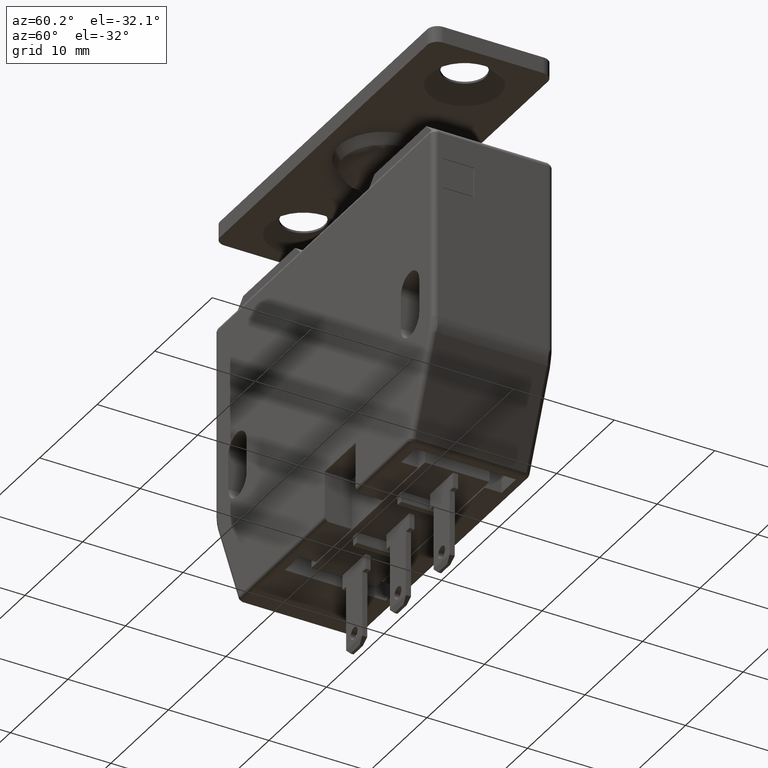
[diagram: clean part render]
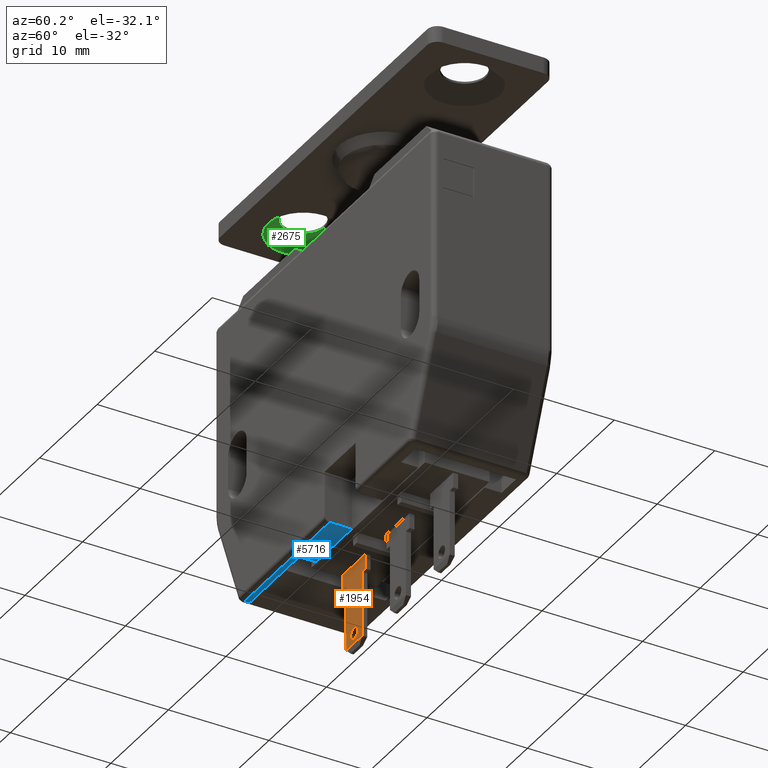
[diagram: same view with three faces highlighted in distinct colors, each labeled with its STEP entity id]
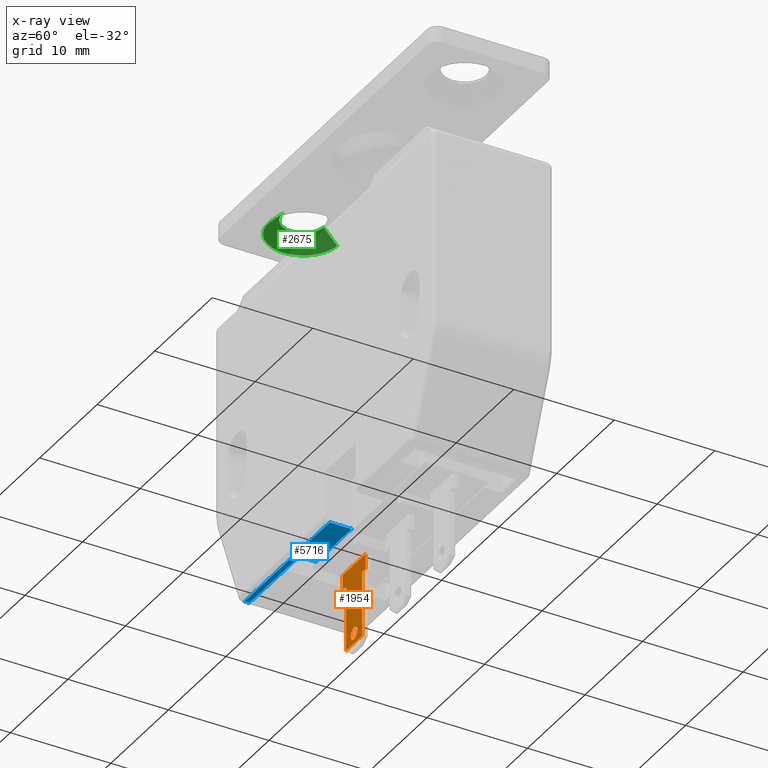
[diagram: x-ray of the same camera — body ghosted, the three highlighted faces saturated]
A machine part, auxiliary view with three faces highlighted in distinct colors.
The next image is the same camera in x-ray (body ghosted, the three faces saturated) — at least one of them is partly hidden behind the body in this view.
Their STEP definitions:

[orange] entity #1954 — the highlighted face is a freeform B-spline surface patch.
#421=CARTESIAN_POINT('',(-5.348150400331335,-0.249999999992534,-38.952924542244503));
#422=VERTEX_POINT('',#421);
#428=CARTESIAN_POINT('',(-4.750000000116760,-0.249999999992534,-39.600000000002701));
#429=VERTEX_POINT('',#428);
#430=CARTESIAN_POINT('',(-5.348150400331336,-0.249999999992534,-38.952924542244510));
#431=CARTESIAN_POINT('',(-5.350000000116761,-0.249999999992534,-38.976425935636605));
#432=CARTESIAN_POINT('',(-5.350000000116760,-0.249999999992534,-39.000000000002700));
#433=CARTESIAN_POINT('',(-5.350000000116759,-0.249999999992534,-39.600000000002701));
#434=CARTESIAN_POINT('',(-4.750000000116760,-0.249999999992534,-39.600000000002701));
#442=(BOUNDED_CURVE()B_SPLINE_CURVE(2,(#430,#431,#432,#433,#434),.UNSPECIFIED.,.F.,.U.)B_SPLINE_CURVE_WITH_KNOTS((3,2,3),(0.736331300540630,0.750000000000000,1.0),.UNSPECIFIED.)CURVE()GEOMETRIC_REPRESENTATION_ITEM()RATIONAL_B_SPLINE_CURVE((0.969723355979533,0.983986122473406,1.0,0.707106781186547,1.0))REPRESENTATION_ITEM(''));
#443=EDGE_CURVE('',#422,#429,#442,.T.);
#445=CARTESIAN_POINT('',(-4.151849599902185,-0.249999999992534,-39.047075457760897));
#446=VERTEX_POINT('',#445);
#447=CARTESIAN_POINT('',(-4.750000000116760,-0.249999999992534,-39.600000000002701));
#448=CARTESIAN_POINT('',(-4.195365705420861,-0.249999999992534,-39.600000000002716));
#449=CARTESIAN_POINT('',(-4.151849599902186,-0.249999999992534,-39.047075457760897));
#457=(BOUNDED_CURVE()B_SPLINE_CURVE(2,(#447,#448,#449),.UNSPECIFIED.,.F.,.U.)B_SPLINE_CURVE_WITH_KNOTS((3,3),(0.0,0.236331300540630),.UNSPECIFIED.)CURVE()GEOMETRIC_REPRESENTATION_ITEM()RATIONAL_B_SPLINE_CURVE((1.0,0.723120658713141,0.969723355979534))REPRESENTATION_ITEM(''));
#458=EDGE_CURVE('',#429,#446,#457,.T.);
#504=CARTESIAN_POINT('',(-4.750000000116760,-0.249999999992534,-38.400000000002699));
#505=VERTEX_POINT('',#504);
#506=CARTESIAN_POINT('',(-4.151849599902186,-0.249999999992534,-39.047075457760897));
#507=CARTESIAN_POINT('',(-4.150000000116760,-0.249999999992534,-39.023574064368802));
#508=CARTESIAN_POINT('',(-4.150000000116760,-0.249999999992534,-39.000000000002700));
#509=CARTESIAN_POINT('',(-4.150000000116760,-0.249999999992534,-38.400000000002699));
#510=CARTESIAN_POINT('',(-4.750000000116760,-0.249999999992534,-38.400000000002699));
#518=(BOUNDED_CURVE()B_SPLINE_CURVE(2,(#506,#507,#508,#509,#510),.UNSPECIFIED.,.F.,.U.)B_SPLINE_CURVE_WITH_KNOTS((3,2,3),(0.236331300540630,0.250000000000000,0.500000000000000),.UNSPECIFIED.)CURVE()GEOMETRIC_REPRESENTATION_ITEM()RATIONAL_B_SPLINE_CURVE((0.969723355979534,0.983986122473406,1.0,0.707106781186547,1.0))REPRESENTATION_ITEM(''));
#519=EDGE_CURVE('',#446,#505,#518,.T.);
#521=CARTESIAN_POINT('',(-4.750000000116760,-0.249999999992534,-38.400000000002699));
#522=CARTESIAN_POINT('',(-5.304634294812660,-0.249999999992534,-38.400000000002692));
#523=CARTESIAN_POINT('',(-5.348150400331335,-0.249999999992534,-38.952924542244503));
#531=(BOUNDED_CURVE()B_SPLINE_CURVE(2,(#521,#522,#523),.UNSPECIFIED.,.F.,.U.)B_SPLINE_CURVE_WITH_KNOTS((3,3),(0.500000000000000,0.736331300540630),.UNSPECIFIED.)CURVE()GEOMETRIC_REPRESENTATION_ITEM()RATIONAL_B_SPLINE_CURVE((1.0,0.723120658713141,0.969723355979534))REPRESENTATION_ITEM(''));
#532=EDGE_CURVE('',#505,#422,#531,.T.);
#742=CARTESIAN_POINT('',(-3.350000000116665,-0.249999999992534,-40.000000000002700));
#743=VERTEX_POINT('',#742);
#804=CARTESIAN_POINT('',(-6.150000000116780,-0.249999999992497,-40.000000000002700));
#805=VERTEX_POINT('',#804);
#1083=CARTESIAN_POINT('',(-6.150000000116780,-0.249999999992497,-40.000000000002700));
#1084=CARTESIAN_POINT('',(-3.350000000116665,-0.249999999992534,-40.000000000002700));
#1085=QUASI_UNIFORM_CURVE('',1,(#1083,#1084),.UNSPECIFIED.,.F.,.U.);
#1086=EDGE_CURVE('',#805,#743,#1085,.T.);
#1521=CARTESIAN_POINT('',(-2.750000000116755,-0.249999999992534,-33.500000000002750));
#1522=VERTEX_POINT('',#1521);
#1528=CARTESIAN_POINT('',(-3.350000000116725,-0.249999999992534,-33.500000000002750));
#1529=VERTEX_POINT('',#1528);
#1530=CARTESIAN_POINT('',(-3.350000000116725,-0.249999999992534,-33.500000000002750));
#1531=CARTESIAN_POINT('',(-2.750000000116755,-0.249999999992534,-33.500000000002750));
#1532=QUASI_UNIFORM_CURVE('',1,(#1530,#1531),.UNSPECIFIED.,.F.,.U.);
#1533=EDGE_CURVE('',#1529,#1522,#1532,.T.);
#1554=CARTESIAN_POINT('',(-3.350000000116665,-0.249999999992534,-40.000000000002700));
#1555=CARTESIAN_POINT('',(-3.350000000116725,-0.249999999992534,-33.500000000002750));
#1556=QUASI_UNIFORM_CURVE('',1,(#1554,#1555),.UNSPECIFIED.,.F.,.U.);
#1557=EDGE_CURVE('',#743,#1529,#1556,.T.);
#1576=CARTESIAN_POINT('',(-6.150000000116730,-0.249999999992534,-33.500000000002750));
#1577=VERTEX_POINT('',#1576);
#1578=CARTESIAN_POINT('',(-6.150000000116730,-0.249999999992534,-33.500000000002750));
#1579=CARTESIAN_POINT('',(-6.150000000116780,-0.249999999992497,-40.000000000002700));
#1580=QUASI_UNIFORM_CURVE('',1,(#1578,#1579),.UNSPECIFIED.,.F.,.U.);
#1581=EDGE_CURVE('',#1577,#805,#1580,.T.);
#1604=CARTESIAN_POINT('',(-6.750000000116760,-0.249999999992534,-33.500000000002750));
#1605=VERTEX_POINT('',#1604);
#1606=CARTESIAN_POINT('',(-6.750000000116760,-0.249999999992534,-33.500000000002750));
#1607=CARTESIAN_POINT('',(-6.150000000116730,-0.249999999992534,-33.500000000002750));
#1608=QUASI_UNIFORM_CURVE('',1,(#1606,#1607),.UNSPECIFIED.,.F.,.U.);
#1609=EDGE_CURVE('',#1605,#1577,#1608,.T.);
#1632=CARTESIAN_POINT('',(-6.750000000116760,-0.249999999992534,-32.000000000002807));
#1633=VERTEX_POINT('',#1632);
#1634=CARTESIAN_POINT('',(-6.750000000116760,-0.249999999992534,-32.000000000002807));
#1635=CARTESIAN_POINT('',(-6.750000000116760,-0.249999999992534,-33.500000000002750));
#1636=QUASI_UNIFORM_CURVE('',1,(#1634,#1635),.UNSPECIFIED.,.F.,.U.);
#1637=EDGE_CURVE('',#1633,#1605,#1636,.T.);
#1659=CARTESIAN_POINT('',(-2.750000000116755,-0.249999999992534,-32.000000000002807));
#1660=VERTEX_POINT('',#1659);
#1666=CARTESIAN_POINT('',(-2.750000000116755,-0.249999999992534,-33.500000000002750));
#1667=CARTESIAN_POINT('',(-2.750000000116755,-0.249999999992534,-32.000000000002807));
#1668=QUASI_UNIFORM_CURVE('',1,(#1666,#1667),.UNSPECIFIED.,.F.,.U.);
#1669=EDGE_CURVE('',#1522,#1660,#1668,.T.);
#1929=CARTESIAN_POINT('',(-6.949799992363984,-0.249999999992483,-40.399599984497137));
#1930=CARTESIAN_POINT('',(-2.550199900581170,-0.249999999992483,-40.399599984497137));
#1931=CARTESIAN_POINT('',(-6.949799992363984,-0.249999999992483,-31.600399800931640));
#1932=CARTESIAN_POINT('',(-2.550199900581170,-0.249999999992483,-31.600399800931640));
#1933=B_SPLINE_SURFACE_WITH_KNOTS('',1,1,((#1929,#1931),(#1930,#1932)),.UNSPECIFIED.,.F.,.F.,.U.,(2,2),(2,2),(0.0,4.399600091782814),(0.0,8.799200183565500),.UNSPECIFIED.);
#1934=ORIENTED_EDGE('',*,*,#1581,.T.);
#1935=ORIENTED_EDGE('',*,*,#1086,.T.);
#1936=ORIENTED_EDGE('',*,*,#1557,.T.);
#1937=ORIENTED_EDGE('',*,*,#1533,.T.);
#1938=ORIENTED_EDGE('',*,*,#1669,.T.);
#1939=CARTESIAN_POINT('',(-2.750000000116755,-0.249999999992534,-32.000000000002807));
#1940=CARTESIAN_POINT('',(-6.750000000116760,-0.249999999992534,-32.000000000002807));
#1941=QUASI_UNIFORM_CURVE('',1,(#1939,#1940),.UNSPECIFIED.,.F.,.U.);
#1942=EDGE_CURVE('',#1660,#1633,#1941,.T.);
#1943=ORIENTED_EDGE('',*,*,#1942,.T.);
#1944=ORIENTED_EDGE('',*,*,#1637,.T.);
#1945=ORIENTED_EDGE('',*,*,#1609,.T.);
#1946=EDGE_LOOP('',(#1934,#1935,#1936,#1937,#1938,#1943,#1944,#1945));
#1947=FACE_OUTER_BOUND('',#1946,.T.);
#1948=ORIENTED_EDGE('',*,*,#532,.F.);
#1949=ORIENTED_EDGE('',*,*,#519,.F.);
#1950=ORIENTED_EDGE('',*,*,#458,.F.);
#1951=ORIENTED_EDGE('',*,*,#443,.F.);
#1952=EDGE_LOOP('',(#1948,#1949,#1950,#1951));
#1953=FACE_BOUND('',#1952,.T.);
#1954=ADVANCED_FACE('',(#1947,#1953),#1933,.T.);

[blue] entity #5716 — the highlighted face is a freeform B-spline surface patch.
#4068=CARTESIAN_POINT('',(0.149999999999977,-5.500000000000000,-32.000000000002807));
#4069=VERTEX_POINT('',#4068);
#4084=CARTESIAN_POINT('',(-14.661483519286600,-5.500000000000000,-32.000000000002807));
#4085=VERTEX_POINT('',#4084);
#4099=CARTESIAN_POINT('',(0.149999999999977,-5.500000000000000,-32.000000000002807));
#4100=CARTESIAN_POINT('',(-14.661483519286600,-5.500000000000000,-32.000000000002807));
#4101=QUASI_UNIFORM_CURVE('',1,(#4099,#4100),.UNSPECIFIED.,.F.,.U.);
#4102=EDGE_CURVE('',#4069,#4085,#4101,.T.);
#4670=CARTESIAN_POINT('',(-6.0,-3.300000000062920,-32.000000000002807));
#4671=VERTEX_POINT('',#4670);
#4672=CARTESIAN_POINT('',(0.149999999999977,-3.300000000062920,-32.000000000002807));
#4673=VERTEX_POINT('',#4672);
#4674=CARTESIAN_POINT('',(-6.0,-3.300000000062920,-32.000000000002807));
#4675=CARTESIAN_POINT('',(0.149999999999977,-3.300000000062920,-32.000000000002807));
#4676=QUASI_UNIFORM_CURVE('',1,(#4674,#4675),.UNSPECIFIED.,.F.,.U.);
#4677=EDGE_CURVE('',#4671,#4673,#4676,.T.);
#4728=CARTESIAN_POINT('',(-6.0,-5.0,-32.000000000002807));
#4729=VERTEX_POINT('',#4728);
#4741=CARTESIAN_POINT('',(-6.0,-3.300000000062920,-32.000000000002807));
#4742=CARTESIAN_POINT('',(-6.0,-5.0,-32.000000000002807));
#4743=QUASI_UNIFORM_CURVE('',1,(#4741,#4742),.UNSPECIFIED.,.F.,.U.);
#4744=EDGE_CURVE('',#4671,#4729,#4743,.T.);
#4800=CARTESIAN_POINT('',(0.149999999999977,-3.300000000062920,-32.000000000002807));
#4801=CARTESIAN_POINT('',(0.149999999999977,-5.500000000000000,-32.000000000002807));
#4802=QUASI_UNIFORM_CURVE('',1,(#4800,#4801),.UNSPECIFIED.,.F.,.U.);
#4803=EDGE_CURVE('',#4673,#4069,#4802,.T.);
#5414=CARTESIAN_POINT('',(-14.661483519286600,-5.0,-32.000000000002807));
#5415=VERTEX_POINT('',#5414);
#5416=CARTESIAN_POINT('',(-14.661483519286600,-5.0,-32.000000000002807));
#5417=CARTESIAN_POINT('',(-14.661483519286600,-5.500000000000000,-32.000000000002807));
#5418=QUASI_UNIFORM_CURVE('',1,(#5416,#5417),.UNSPECIFIED.,.F.,.U.);
#5419=EDGE_CURVE('',#5415,#4085,#5418,.T.);
#5699=CARTESIAN_POINT('',(-15.401317092367441,-5.609889995732829,-32.000000000002807));
#5700=CARTESIAN_POINT('',(0.889833970355760,-5.609889995732829,-32.000000000002807));
#5701=CARTESIAN_POINT('',(-15.401317092367441,-3.190109945321492,-32.000000000002807));
#5702=CARTESIAN_POINT('',(0.889833970355760,-3.190109945321492,-32.000000000002807));
#5703=B_SPLINE_SURFACE_WITH_KNOTS('',1,1,((#5699,#5701),(#5700,#5702)),.UNSPECIFIED.,.F.,.F.,.U.,(2,2),(2,2),(0.0,16.291151062723198),(0.0,2.419780050411338),.UNSPECIFIED.);
#5704=ORIENTED_EDGE('',*,*,#4803,.T.);
#5705=ORIENTED_EDGE('',*,*,#4102,.T.);
#5706=ORIENTED_EDGE('',*,*,#5419,.F.);
#5707=CARTESIAN_POINT('',(-6.0,-5.0,-32.000000000002807));
#5708=CARTESIAN_POINT('',(-14.661483519286600,-5.0,-32.000000000002807));
#5709=QUASI_UNIFORM_CURVE('',1,(#5707,#5708),.UNSPECIFIED.,.F.,.U.);
#5710=EDGE_CURVE('',#4729,#5415,#5709,.T.);
#5711=ORIENTED_EDGE('',*,*,#5710,.F.);
#5712=ORIENTED_EDGE('',*,*,#4744,.F.);
#5713=ORIENTED_EDGE('',*,*,#4677,.T.);
#5714=EDGE_LOOP('',(#5704,#5705,#5706,#5711,#5712,#5713));
#5715=FACE_OUTER_BOUND('',#5714,.T.);
#5716=ADVANCED_FACE('',(#5715),#5703,.F.);

[green] entity #2675 — the highlighted face is a freeform B-spline surface patch.
#2512=CARTESIAN_POINT('',(-14.128201933102339,2.096083076673555,8.200000000002605));
#2513=VERTEX_POINT('',#2512);
#2514=CARTESIAN_POINT('',(-14.213669888524260,3.493471794476534,6.799999999989833));
#2515=VERTEX_POINT('',#2514);
#2516=CARTESIAN_POINT('',(-14.128201933102339,2.096083076673555,8.200000000002605));
#2517=CARTESIAN_POINT('',(-14.213669888524260,3.493471794476534,6.799999999989833));
#2518=QUASI_UNIFORM_CURVE('',1,(#2516,#2517),.UNSPECIFIED.,.F.,.U.);
#2519=EDGE_CURVE('',#2513,#2515,#2518,.T.);
#2538=CARTESIAN_POINT('',(-13.786330111582391,-3.493471794483349,6.799999999989833));
#2539=VERTEX_POINT('',#2538);
#2553=CARTESIAN_POINT('',(-13.871798067004301,-2.096083076680369,8.200000000002605));
#2554=VERTEX_POINT('',#2553);
#2555=CARTESIAN_POINT('',(-13.871798067004301,-2.096083076680369,8.200000000002605));
#2556=CARTESIAN_POINT('',(-13.786330111582391,-3.493471794483349,6.799999999989833));
#2557=QUASI_UNIFORM_CURVE('',1,(#2555,#2556),.UNSPECIFIED.,.F.,.U.);
#2558=EDGE_CURVE('',#2554,#2539,#2557,.T.);
#2593=CARTESIAN_POINT('',(-13.873934765914299,-2.061148358737118,8.235000000002597));
#2594=CARTESIAN_POINT('',(-15.935083124648015,-2.187213592876142,8.235000000002598));
#2595=CARTESIAN_POINT('',(-16.061148358787030,-0.126065234142432,8.235000000002597));
#2596=CARTESIAN_POINT('',(-16.187213592926053,1.935083124591280,8.235000000002598));
#2597=CARTESIAN_POINT('',(-14.126065234192350,2.061148358730304,8.235000000002597));
#2598=CARTESIAN_POINT('',(-13.784139995325731,-3.529279880369769,6.764125000002943));
#2599=CARTESIAN_POINT('',(-17.313419875692091,-3.745139885097365,6.764125000002943));
#2600=CARTESIAN_POINT('',(-17.529279880419679,-0.215860004731002,6.764125000002943));
#2601=CARTESIAN_POINT('',(-17.745139885147271,3.313419875635361,6.764125000002943));
#2602=CARTESIAN_POINT('',(-14.215860004780920,3.529279880362955,6.764125000002943));
#2610=(BOUNDED_SURFACE()B_SPLINE_SURFACE(2,1,((#2593,#2598),(#2594,#2599),(#2595,#2600),(#2596,#2601),(#2597,#2602)),.UNSPECIFIED.,.F.,.F.,.U.)B_SPLINE_SURFACE_WITH_KNOTS((3,2,3),(2,2),(0.0,5.858429519417967,11.716859038835929),(0.0,2.080131373558036),.UNSPECIFIED.)GEOMETRIC_REPRESENTATION_ITEM()RATIONAL_B_SPLINE_SURFACE(((1.0,1.0),(0.707106781186548,0.707106781186548),(1.0,1.0),(0.707106781186548,0.707106781186548),(1.0,1.0)))REPRESENTATION_ITEM('')SURFACE());
#2611=ORIENTED_EDGE('',*,*,#2519,.F.);
#2612=CARTESIAN_POINT('',(-16.100000000045959,-3.407176E-012,8.200000000002605));
#2613=VERTEX_POINT('',#2612);
#2614=CARTESIAN_POINT('',(-16.100000000045959,-3.407176E-012,8.200000000002605));
#2615=CARTESIAN_POINT('',(-16.100000000032818,1.975482740442814,8.200000000002605));
#2616=CARTESIAN_POINT('',(-14.128201933102343,2.096083076673556,8.200000000002605));
#2624=(BOUNDED_CURVE()B_SPLINE_CURVE(2,(#2614,#2615,#2616),.UNSPECIFIED.,.F.,.U.)B_SPLINE_CURVE_WITH_KNOTS((3,3),(0.0,0.239332962237643),.UNSPECIFIED.)CURVE()GEOMETRIC_REPRESENTATION_ITEM()RATIONAL_B_SPLINE_CURVE((1.0,0.719603993288233,0.976072041663932))REPRESENTATION_ITEM(''));
#2625=EDGE_CURVE('',#2613,#2513,#2624,.T.);
#2626=ORIENTED_EDGE('',*,*,#2625,.F.);
#2627=CARTESIAN_POINT('',(-13.871798067004304,-2.096083076680369,8.200000000002605));
#2628=CARTESIAN_POINT('',(-13.935839197126059,-2.099999999997624,8.200000000002605));
#2629=CARTESIAN_POINT('',(-14.000000000078821,-2.099999999997600,8.200000000002605));
#2630=CARTESIAN_POINT('',(-16.100000000058316,-2.099999999996797,8.200000000002605));
#2631=CARTESIAN_POINT('',(-16.100000000045959,-3.407176E-012,8.200000000002605));
#2639=(BOUNDED_CURVE()B_SPLINE_CURVE(2,(#2627,#2628,#2629,#2630,#2631),.UNSPECIFIED.,.F.,.U.)B_SPLINE_CURVE_WITH_KNOTS((3,2,3),(0.739332962237643,0.750000000000000,1.0),.UNSPECIFIED.)CURVE()GEOMETRIC_REPRESENTATION_ITEM()RATIONAL_B_SPLINE_CURVE((0.976072041663932,0.987502787898314,1.0,0.707106781186547,1.0))REPRESENTATION_ITEM(''));
#2640=EDGE_CURVE('',#2554,#2613,#2639,.T.);
#2641=ORIENTED_EDGE('',*,*,#2640,.F.);
#2642=ORIENTED_EDGE('',*,*,#2558,.T.);
#2643=CARTESIAN_POINT('',(-17.500000000049660,-3.407176E-012,6.800000000002935));
#2644=VERTEX_POINT('',#2643);
#2645=CARTESIAN_POINT('',(-13.786330111582386,-3.493471794483349,6.799999999989833));
#2646=CARTESIAN_POINT('',(-13.893065328458267,-3.500000000012636,6.799999999990021));
#2647=CARTESIAN_POINT('',(-14.000000000052539,-3.500000000012435,6.799999999990221));
#2648=CARTESIAN_POINT('',(-17.500000000049283,-3.500000000005895,6.799999999996772));
#2649=CARTESIAN_POINT('',(-17.500000000049660,-3.407176E-012,6.800000000002935));
#2657=(BOUNDED_CURVE()B_SPLINE_CURVE(2,(#2645,#2646,#2647,#2648,#2649),.UNSPECIFIED.,.F.,.U.)B_SPLINE_CURVE_WITH_KNOTS((3,2,3),(0.739332962237110,0.750000000000000,1.0),.UNSPECIFIED.)CURVE()GEOMETRIC_REPRESENTATION_ITEM()RATIONAL_B_SPLINE_CURVE((0.976072041662790,0.987502787897690,1.0,0.707106781186548,1.0))REPRESENTATION_ITEM(''));
#2658=EDGE_CURVE('',#2539,#2644,#2657,.T.);
#2659=ORIENTED_EDGE('',*,*,#2658,.T.);
#2660=CARTESIAN_POINT('',(-17.500000000049660,-3.407176E-012,6.800000000002935));
#2661=CARTESIAN_POINT('',(-17.500000000050054,3.292471234076746,6.799999999996386));
#2662=CARTESIAN_POINT('',(-14.213669888524255,3.493471794476535,6.799999999989833));
#2670=(BOUNDED_CURVE()B_SPLINE_CURVE(2,(#2660,#2661,#2662),.UNSPECIFIED.,.F.,.U.)B_SPLINE_CURVE_WITH_KNOTS((3,3),(0.0,0.239332962237110),.UNSPECIFIED.)CURVE()GEOMETRIC_REPRESENTATION_ITEM()RATIONAL_B_SPLINE_CURVE((1.0,0.719603993288857,0.976072041662790))REPRESENTATION_ITEM(''));
#2671=EDGE_CURVE('',#2644,#2515,#2670,.T.);
#2672=ORIENTED_EDGE('',*,*,#2671,.T.);
#2673=EDGE_LOOP('',(#2611,#2626,#2641,#2642,#2659,#2672));
#2674=FACE_OUTER_BOUND('',#2673,.T.);
#2675=ADVANCED_FACE('',(#2674),#2610,.F.);